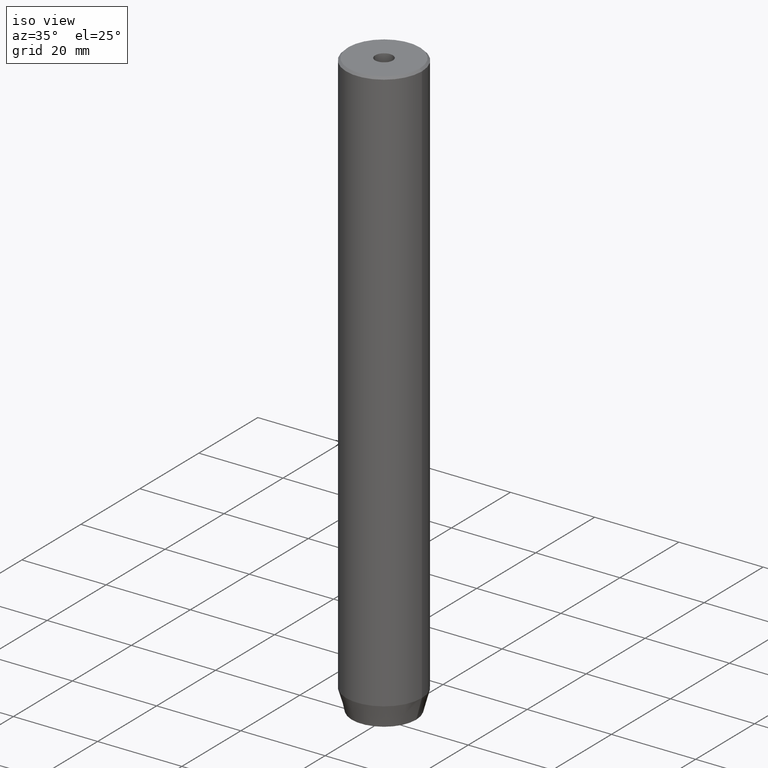
[diagram: clean part render]
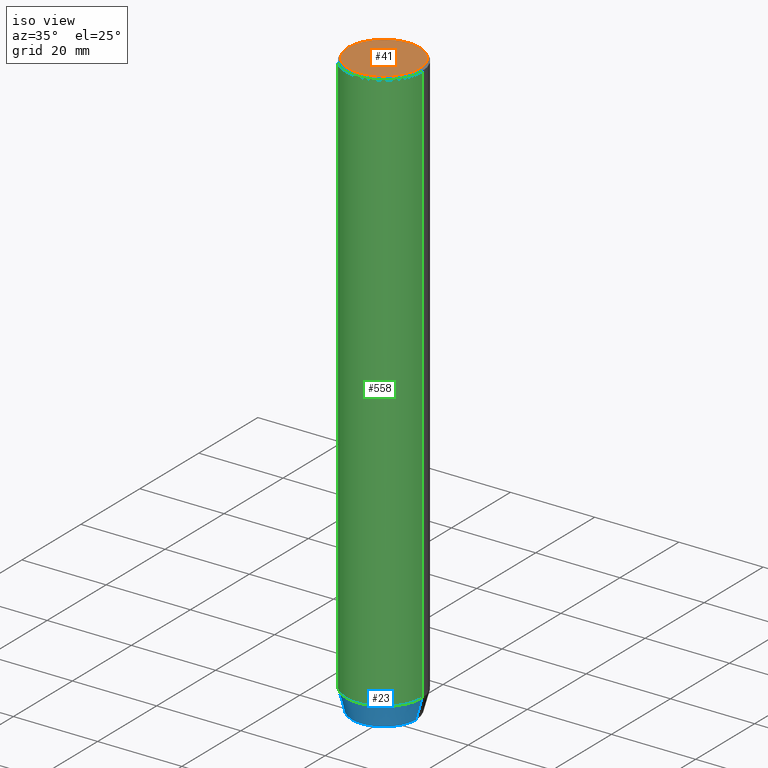
[diagram: same view with three faces highlighted in distinct colors, each labeled with its STEP entity id]
A machine part, iso view with three faces highlighted in distinct colors.
Their STEP definitions:

[orange] entity #41 — the highlighted planar face has unit normal (0, -0, 1).
#17 = ORIENTED_EDGE ( 'NONE', *, *, #479, .F. ) ;
#38 = CARTESIAN_POINT ( 'NONE',  ( 0.000000000000000000, 0.000000000000000000, -1.990051048614449116E-16 ) ) ;
#41 = ADVANCED_FACE ( 'NONE', ( #346, #130 ), #71, .T. ) ;
#48 = VERTEX_POINT ( 'NONE', #478 ) ;
#70 = CARTESIAN_POINT ( 'NONE',  ( 0.000000000000000000, 0.000000000000000000, -1.990051048614449116E-16 ) ) ;
#71 = PLANE ( 'NONE',  #532 ) ;
#116 = VERTEX_POINT ( 'NONE', #397 ) ;
#118 = EDGE_LOOP ( 'NONE', ( #17, #203 ) ) ;
#128 = EDGE_CURVE ( 'NONE', #187, #309, #407, .T. ) ;
#130 = FACE_OUTER_BOUND ( 'NONE', #160, .T. ) ;
#160 = EDGE_LOOP ( 'NONE', ( #353, #290 ) ) ;
#166 = CARTESIAN_POINT ( 'NONE',  ( 0.000000000000000000, 0.000000000000000000, 0.000000000000000000 ) ) ;
#171 = DIRECTION ( 'NONE',  ( -0.000000000000000000, -0.000000000000000000, 1.000000000000000000 ) ) ;
#187 = VERTEX_POINT ( 'NONE', #376 ) ;
#203 = ORIENTED_EDGE ( 'NONE', *, *, #467, .F. ) ;
#212 = DIRECTION ( 'NONE',  ( 1.000000000000000000, 0.000000000000000000, 0.000000000000000000 ) ) ;
#215 = CARTESIAN_POINT ( 'NONE',  ( 0.000000000000000000, 0.000000000000000000, 0.000000000000000000 ) ) ;
#241 = AXIS2_PLACEMENT_3D ( 'NONE', #70, #294, #580 ) ;
#247 = CARTESIAN_POINT ( 'NONE',  ( 0.000000000000000000, 0.000000000000000000, 0.000000000000000000 ) ) ;
#290 = ORIENTED_EDGE ( 'NONE', *, *, #128, .T. ) ;
#292 = CARTESIAN_POINT ( 'NONE',  ( -8.500000000000021316, 0.000000000000000000, 0.000000000000000000 ) ) ;
#294 = DIRECTION ( 'NONE',  ( -0.000000000000000000, -0.000000000000000000, 1.000000000000000000 ) ) ;
#304 = DIRECTION ( 'NONE',  ( 0.000000000000000000, -0.000000000000000000, 1.000000000000000000 ) ) ;
#309 = VERTEX_POINT ( 'NONE', #292 ) ;
#326 = AXIS2_PLACEMENT_3D ( 'NONE', #247, #509, #424 ) ;
#336 = CIRCLE ( 'NONE', #326, 8.500000000000021316 ) ;
#342 = DIRECTION ( 'NONE',  ( -0.000000000000000000, -0.000000000000000000, 1.000000000000000000 ) ) ;
#346 = FACE_BOUND ( 'NONE', #118, .T. ) ;
#348 = CIRCLE ( 'NONE', #241, 2.099999999999998757 ) ;
#353 = ORIENTED_EDGE ( 'NONE', *, *, #359, .T. ) ;
#355 = DIRECTION ( 'NONE',  ( 1.000000000000000000, 0.000000000000000000, 0.000000000000000000 ) ) ;
#359 = EDGE_CURVE ( 'NONE', #309, #187, #336, .T. ) ;
#363 = CIRCLE ( 'NONE', #511, 2.099999999999998757 ) ;
#376 = CARTESIAN_POINT ( 'NONE',  ( 8.500000000000021316, 1.071565949253935307E-15, 0.000000000000000000 ) ) ;
#397 = CARTESIAN_POINT ( 'NONE',  ( -2.099999999999998757, 2.571758278209440478E-16, -1.990051048614449116E-16 ) ) ;
#407 = CIRCLE ( 'NONE', #484, 8.500000000000021316 ) ;
#424 = DIRECTION ( 'NONE',  ( 1.000000000000000000, 0.000000000000000000, 0.000000000000000000 ) ) ;
#467 = EDGE_CURVE ( 'NONE', #116, #48, #363, .T. ) ;
#478 = CARTESIAN_POINT ( 'NONE',  ( 2.099999999999998757, 0.000000000000000000, -1.990051048614449116E-16 ) ) ;
#479 = EDGE_CURVE ( 'NONE', #48, #116, #348, .T. ) ;
#484 = AXIS2_PLACEMENT_3D ( 'NONE', #215, #171, #355 ) ;
#485 = DIRECTION ( 'NONE',  ( 1.000000000000000000, 0.000000000000000000, 0.000000000000000000 ) ) ;
#509 = DIRECTION ( 'NONE',  ( -0.000000000000000000, -0.000000000000000000, 1.000000000000000000 ) ) ;
#511 = AXIS2_PLACEMENT_3D ( 'NONE', #38, #342, #212 ) ;
#532 = AXIS2_PLACEMENT_3D ( 'NONE', #166, #304, #485 ) ;
#580 = DIRECTION ( 'NONE',  ( 1.000000000000000000, 0.000000000000000000, 0.000000000000000000 ) ) ;

[blue] entity #23 — the highlighted conical surface has half-angle 15 deg.
#6 = AXIS2_PLACEMENT_3D ( 'NONE', #481, #444, #535 ) ;
#23 = ADVANCED_FACE ( 'NONE', ( #572 ), #154, .T. ) ;
#24 = CIRCLE ( 'NONE', #545, 7.660254037844381969 ) ;
#68 = EDGE_LOOP ( 'NONE', ( #112, #318, #206, #579 ) ) ;
#96 = CARTESIAN_POINT ( 'NONE',  ( -7.660254037844381969, 1.020146339021394469E-15, -140.0000000000000000 ) ) ;
#99 = CARTESIAN_POINT ( 'NONE',  ( -9.000000000000000000, 1.102182119232617714E-15, -135.0000000000000000 ) ) ;
#110 = VECTOR ( 'NONE', #327, 1000.000000000000114 ) ;
#112 = ORIENTED_EDGE ( 'NONE', *, *, #338, .F. ) ;
#115 = LINE ( 'NONE', #284, #372 ) ;
#147 = CIRCLE ( 'NONE', #345, 9.000000000000000000 ) ;
#148 = CARTESIAN_POINT ( 'NONE',  ( 0.000000000000000000, 0.000000000000000000, -140.0000000000000000 ) ) ;
#154 = CONICAL_SURFACE ( 'NONE', #6, 9.000000000000000000, 0.2617993877991499074 ) ;
#156 = LINE ( 'NONE', #518, #110 ) ;
#200 = VERTEX_POINT ( 'NONE', #96 ) ;
#206 = ORIENTED_EDGE ( 'NONE', *, *, #330, .T. ) ;
#229 = VERTEX_POINT ( 'NONE', #278 ) ;
#236 = DIRECTION ( 'NONE',  ( 0.2588190451025211836, 0.000000000000000000, 0.9659258262890680902 ) ) ;
#270 = VERTEX_POINT ( 'NONE', #99 ) ;
#278 = CARTESIAN_POINT ( 'NONE',  ( 9.000000000000000000, 0.000000000000000000, -135.0000000000000000 ) ) ;
#284 = CARTESIAN_POINT ( 'NONE',  ( 9.000000000000000000, 0.000000000000000000, -135.0000000000000000 ) ) ;
#318 = ORIENTED_EDGE ( 'NONE', *, *, #379, .T. ) ;
#327 = DIRECTION ( 'NONE',  ( -0.2588190451025211836, 3.169619151431770488E-17, 0.9659258262890680902 ) ) ;
#329 = DIRECTION ( 'NONE',  ( -0.000000000000000000, -0.000000000000000000, 1.000000000000000000 ) ) ;
#330 = EDGE_CURVE ( 'NONE', #578, #229, #115, .T. ) ;
#338 = EDGE_CURVE ( 'NONE', #200, #270, #156, .T. ) ;
#345 = AXIS2_PLACEMENT_3D ( 'NONE', #554, #329, #512 ) ;
#372 = VECTOR ( 'NONE', #236, 1000.000000000000114 ) ;
#379 = EDGE_CURVE ( 'NONE', #200, #578, #24, .T. ) ;
#384 = DIRECTION ( 'NONE',  ( 1.000000000000000000, 0.000000000000000000, 0.000000000000000000 ) ) ;
#404 = EDGE_CURVE ( 'NONE', #270, #229, #147, .T. ) ;
#444 = DIRECTION ( 'NONE',  ( -0.000000000000000000, -0.000000000000000000, 1.000000000000000000 ) ) ;
#480 = CARTESIAN_POINT ( 'NONE',  ( 7.660254037844381969, 0.000000000000000000, -140.0000000000000000 ) ) ;
#481 = CARTESIAN_POINT ( 'NONE',  ( 0.000000000000000000, 0.000000000000000000, -135.0000000000000000 ) ) ;
#512 = DIRECTION ( 'NONE',  ( 1.000000000000000000, 0.000000000000000000, 0.000000000000000000 ) ) ;
#513 = DIRECTION ( 'NONE',  ( -0.000000000000000000, -0.000000000000000000, 1.000000000000000000 ) ) ;
#518 = CARTESIAN_POINT ( 'NONE',  ( -9.000000000000000000, 1.102182119232617714E-15, -135.0000000000000000 ) ) ;
#535 = DIRECTION ( 'NONE',  ( 1.000000000000000000, 0.000000000000000000, 0.000000000000000000 ) ) ;
#545 = AXIS2_PLACEMENT_3D ( 'NONE', #148, #513, #384 ) ;
#554 = CARTESIAN_POINT ( 'NONE',  ( 0.000000000000000000, 0.000000000000000000, -135.0000000000000000 ) ) ;
#572 = FACE_OUTER_BOUND ( 'NONE', #68, .T. ) ;
#578 = VERTEX_POINT ( 'NONE', #480 ) ;
#579 = ORIENTED_EDGE ( 'NONE', *, *, #404, .F. ) ;

[green] entity #558 — the highlighted cylindrical surface (partial cylindrical patch) has radius 9 mm, axis along (-0, -0, 1).
#27 = CYLINDRICAL_SURFACE ( 'NONE', #501, 9.000000000000000000 ) ;
#99 = CARTESIAN_POINT ( 'NONE',  ( -9.000000000000000000, 1.102182119232617714E-15, -135.0000000000000000 ) ) ;
#102 = VECTOR ( 'NONE', #275, 1000.000000000000000 ) ;
#117 = LINE ( 'NONE', #159, #555 ) ;
#137 = LINE ( 'NONE', #456, #102 ) ;
#147 = CIRCLE ( 'NONE', #345, 9.000000000000000000 ) ;
#152 = VERTEX_POINT ( 'NONE', #269 ) ;
#155 = ORIENTED_EDGE ( 'NONE', *, *, #404, .T. ) ;
#159 = CARTESIAN_POINT ( 'NONE',  ( 9.000000000000000000, 0.000000000000000000, 0.000000000000000000 ) ) ;
#181 = EDGE_CURVE ( 'NONE', #270, #546, #137, .T. ) ;
#208 = DIRECTION ( 'NONE',  ( 1.000000000000000000, 0.000000000000000000, 0.000000000000000000 ) ) ;
#216 = ORIENTED_EDGE ( 'NONE', *, *, #181, .F. ) ;
#219 = ORIENTED_EDGE ( 'NONE', *, *, #495, .T. ) ;
#229 = VERTEX_POINT ( 'NONE', #278 ) ;
#250 = DIRECTION ( 'NONE',  ( 0.000000000000000000, 0.000000000000000000, -1.000000000000000000 ) ) ;
#263 = EDGE_LOOP ( 'NONE', ( #216, #155, #219, #286 ) ) ;
#269 = CARTESIAN_POINT ( 'NONE',  ( 9.000000000000000000, 0.000000000000000000, -0.4999999999999813483 ) ) ;
#270 = VERTEX_POINT ( 'NONE', #99 ) ;
#275 = DIRECTION ( 'NONE',  ( -0.000000000000000000, -0.000000000000000000, 1.000000000000000000 ) ) ;
#278 = CARTESIAN_POINT ( 'NONE',  ( 9.000000000000000000, 0.000000000000000000, -135.0000000000000000 ) ) ;
#286 = ORIENTED_EDGE ( 'NONE', *, *, #538, .T. ) ;
#288 = CIRCLE ( 'NONE', #445, 9.000000000000000000 ) ;
#303 = DIRECTION ( 'NONE',  ( -0.000000000000000000, -0.000000000000000000, 1.000000000000000000 ) ) ;
#329 = DIRECTION ( 'NONE',  ( -0.000000000000000000, -0.000000000000000000, 1.000000000000000000 ) ) ;
#345 = AXIS2_PLACEMENT_3D ( 'NONE', #554, #329, #512 ) ;
#354 = CARTESIAN_POINT ( 'NONE',  ( 0.000000000000000000, 0.000000000000000000, -0.4999999999999813483 ) ) ;
#391 = CARTESIAN_POINT ( 'NONE',  ( 0.000000000000000000, 0.000000000000000000, 0.000000000000000000 ) ) ;
#404 = EDGE_CURVE ( 'NONE', #270, #229, #147, .T. ) ;
#437 = CARTESIAN_POINT ( 'NONE',  ( -9.000000000000000000, 1.102182119232617714E-15, -0.4999999999999813483 ) ) ;
#445 = AXIS2_PLACEMENT_3D ( 'NONE', #354, #250, #208 ) ;
#456 = CARTESIAN_POINT ( 'NONE',  ( -9.000000000000000000, 1.102182119232617714E-15, 0.000000000000000000 ) ) ;
#487 = DIRECTION ( 'NONE',  ( 1.000000000000000000, 0.000000000000000000, 0.000000000000000000 ) ) ;
#495 = EDGE_CURVE ( 'NONE', #229, #152, #117, .T. ) ;
#501 = AXIS2_PLACEMENT_3D ( 'NONE', #391, #571, #487 ) ;
#512 = DIRECTION ( 'NONE',  ( 1.000000000000000000, 0.000000000000000000, 0.000000000000000000 ) ) ;
#531 = FACE_OUTER_BOUND ( 'NONE', #263, .T. ) ;
#538 = EDGE_CURVE ( 'NONE', #152, #546, #288, .T. ) ;
#546 = VERTEX_POINT ( 'NONE', #437 ) ;
#554 = CARTESIAN_POINT ( 'NONE',  ( 0.000000000000000000, 0.000000000000000000, -135.0000000000000000 ) ) ;
#555 = VECTOR ( 'NONE', #303, 1000.000000000000000 ) ;
#558 = ADVANCED_FACE ( 'NONE', ( #531 ), #27, .T. ) ;
#571 = DIRECTION ( 'NONE',  ( -0.000000000000000000, -0.000000000000000000, 1.000000000000000000 ) ) ;